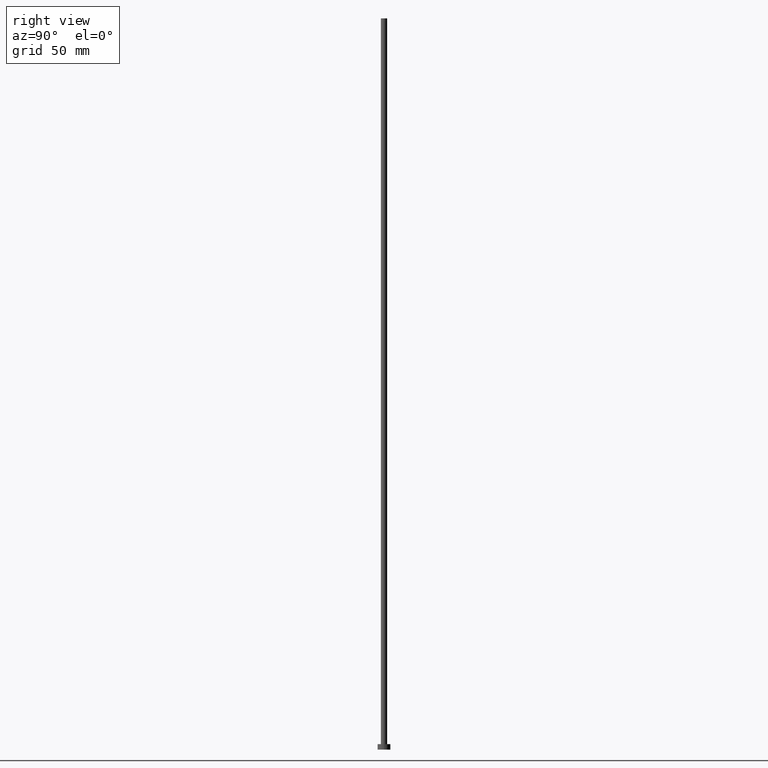
[diagram: clean part render]
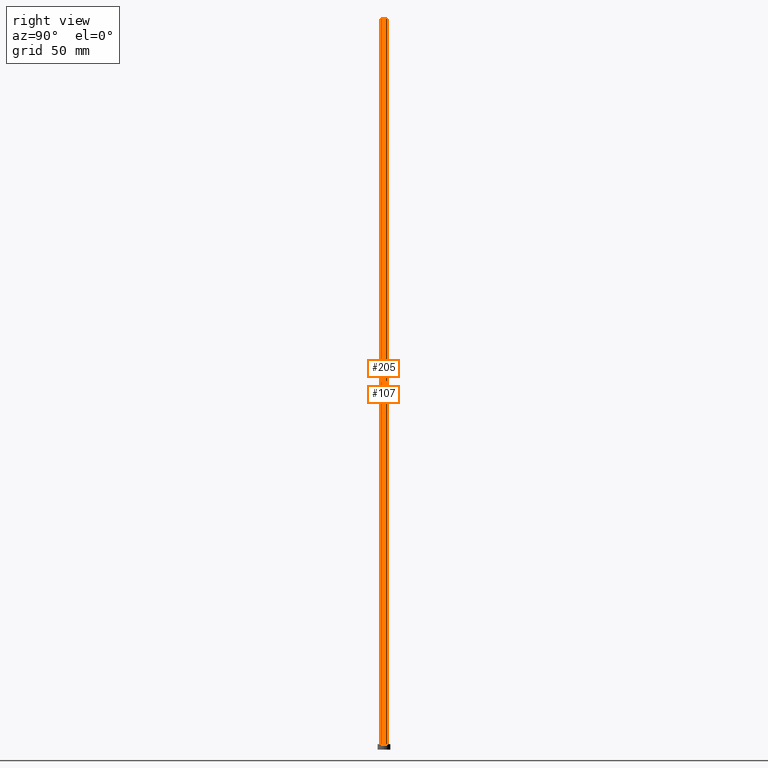
[diagram: same view with one multi-face feature highlighted, each face labeled with its STEP entity id]
A machine part, right view. The highlighted faces form ONE feature: a constant-radius fillet chain: 2 tangent blend faces with common blend radius 1.75 mm. The faces share edges in the B-rep.
Their STEP definitions:
[1] entity #107 (Cylinder):
#15 = VERTEX_POINT ( 'NONE', #118 ) ;
#18 = VECTOR ( 'NONE', #121, 1000.000000000000000 ) ;
#24 = LINE ( 'NONE', #80, #82 ) ;
#36 = AXIS2_PLACEMENT_3D ( 'NONE', #142, #45, #42 ) ;
#38 = VERTEX_POINT ( 'NONE', #104 ) ;
#41 = DIRECTION ( 'NONE',  ( -0.000000000000000000, -0.000000000000000000, -1.000000000000000000 ) ) ;
#42 = DIRECTION ( 'NONE',  ( 1.000000000000000000, 0.000000000000000000, 0.000000000000000000 ) ) ;
#45 = DIRECTION ( 'NONE',  ( 0.000000000000000000, 0.000000000000000000, 1.000000000000000000 ) ) ;
#51 = CIRCLE ( 'NONE', #96, 1.750000000000000000 ) ;
#74 = ORIENTED_EDGE ( 'NONE', *, *, #131, .T. ) ;
#80 = CARTESIAN_POINT ( 'NONE',  ( 1.750000000000000000, 2.143131898507868297E-16, 400.0000000000000000 ) ) ;
#82 = VECTOR ( 'NONE', #135, 1000.000000000000000 ) ;
#86 = DIRECTION ( 'NONE',  ( 0.000000000000000000, 0.000000000000000000, 1.000000000000000000 ) ) ;
#87 = CIRCLE ( 'NONE', #36, 1.750000000000000000 ) ;
#90 = EDGE_CURVE ( 'NONE', #38, #15, #238, .T. ) ;
#93 = EDGE_LOOP ( 'NONE', ( #191, #74, #148, #169 ) ) ;
#96 = AXIS2_PLACEMENT_3D ( 'NONE', #224, #86, #228 ) ;
#104 = CARTESIAN_POINT ( 'NONE',  ( -1.750000000000000000, 0.000000000000000000, 400.0000000000000000 ) ) ;
#107 = ADVANCED_FACE ( 'NONE', ( #223 ), #242, .T. ) ;
#118 = CARTESIAN_POINT ( 'NONE',  ( -1.750000000000000000, 0.000000000000000000, 3.000000000000000000 ) ) ;
#119 = DIRECTION ( 'NONE',  ( -1.000000000000000000, 0.000000000000000000, 0.000000000000000000 ) ) ;
#121 = DIRECTION ( 'NONE',  ( -0.000000000000000000, -0.000000000000000000, -1.000000000000000000 ) ) ;
#131 = EDGE_CURVE ( 'NONE', #211, #194, #24, .T. ) ;
#135 = DIRECTION ( 'NONE',  ( -0.000000000000000000, -0.000000000000000000, -1.000000000000000000 ) ) ;
#142 = CARTESIAN_POINT ( 'NONE',  ( 0.000000000000000000, 0.000000000000000000, 3.000000000000000000 ) ) ;
#143 = CARTESIAN_POINT ( 'NONE',  ( 1.750000000000000000, 2.143131898507868297E-16, 3.000000000000000000 ) ) ;
#148 = ORIENTED_EDGE ( 'NONE', *, *, #214, .T. ) ;
#169 = ORIENTED_EDGE ( 'NONE', *, *, #90, .F. ) ;
#179 = EDGE_CURVE ( 'NONE', #211, #38, #51, .T. ) ;
#180 = CARTESIAN_POINT ( 'NONE',  ( 0.000000000000000000, 0.000000000000000000, 400.0000000000000000 ) ) ;
#191 = ORIENTED_EDGE ( 'NONE', *, *, #179, .F. ) ;
#194 = VERTEX_POINT ( 'NONE', #143 ) ;
#197 = CARTESIAN_POINT ( 'NONE',  ( -1.750000000000000000, 0.000000000000000000, 400.0000000000000000 ) ) ;
#211 = VERTEX_POINT ( 'NONE', #247 ) ;
#214 = EDGE_CURVE ( 'NONE', #194, #15, #87, .T. ) ;
#223 = FACE_OUTER_BOUND ( 'NONE', #93, .T. ) ;
#224 = CARTESIAN_POINT ( 'NONE',  ( 0.000000000000000000, 0.000000000000000000, 400.0000000000000000 ) ) ;
#228 = DIRECTION ( 'NONE',  ( 1.000000000000000000, 0.000000000000000000, 0.000000000000000000 ) ) ;
#238 = LINE ( 'NONE', #197, #18 ) ;
#240 = AXIS2_PLACEMENT_3D ( 'NONE', #180, #41, #119 ) ;
#242 = CYLINDRICAL_SURFACE ( 'NONE', #240, 1.750000000000000000 ) ;
#247 = CARTESIAN_POINT ( 'NONE',  ( 1.750000000000000000, 2.143131898507868297E-16, 400.0000000000000000 ) ) ;
[2] entity #205 (Cylinder):
#7 = DIRECTION ( 'NONE',  ( 1.000000000000000000, 0.000000000000000000, 0.000000000000000000 ) ) ;
#15 = VERTEX_POINT ( 'NONE', #118 ) ;
#18 = VECTOR ( 'NONE', #121, 1000.000000000000000 ) ;
#24 = LINE ( 'NONE', #80, #82 ) ;
#25 = DIRECTION ( 'NONE',  ( -0.000000000000000000, -0.000000000000000000, -1.000000000000000000 ) ) ;
#28 = AXIS2_PLACEMENT_3D ( 'NONE', #178, #55, #61 ) ;
#30 = EDGE_CURVE ( 'NONE', #38, #211, #113, .T. ) ;
#38 = VERTEX_POINT ( 'NONE', #104 ) ;
#44 = EDGE_CURVE ( 'NONE', #15, #194, #164, .T. ) ;
#55 = DIRECTION ( 'NONE',  ( 0.000000000000000000, 0.000000000000000000, 1.000000000000000000 ) ) ;
#61 = DIRECTION ( 'NONE',  ( 1.000000000000000000, 0.000000000000000000, 0.000000000000000000 ) ) ;
#67 = FACE_OUTER_BOUND ( 'NONE', #139, .T. ) ;
#80 = CARTESIAN_POINT ( 'NONE',  ( 1.750000000000000000, 2.143131898507868297E-16, 400.0000000000000000 ) ) ;
#82 = VECTOR ( 'NONE', #135, 1000.000000000000000 ) ;
#88 = DIRECTION ( 'NONE',  ( -1.000000000000000000, 0.000000000000000000, 0.000000000000000000 ) ) ;
#90 = EDGE_CURVE ( 'NONE', #38, #15, #238, .T. ) ;
#91 = ORIENTED_EDGE ( 'NONE', *, *, #131, .F. ) ;
#104 = CARTESIAN_POINT ( 'NONE',  ( -1.750000000000000000, 0.000000000000000000, 400.0000000000000000 ) ) ;
#113 = CIRCLE ( 'NONE', #208, 1.750000000000000000 ) ;
#118 = CARTESIAN_POINT ( 'NONE',  ( -1.750000000000000000, 0.000000000000000000, 3.000000000000000000 ) ) ;
#121 = DIRECTION ( 'NONE',  ( -0.000000000000000000, -0.000000000000000000, -1.000000000000000000 ) ) ;
#131 = EDGE_CURVE ( 'NONE', #211, #194, #24, .T. ) ;
#133 = ORIENTED_EDGE ( 'NONE', *, *, #44, .T. ) ;
#135 = DIRECTION ( 'NONE',  ( -0.000000000000000000, -0.000000000000000000, -1.000000000000000000 ) ) ;
#139 = EDGE_LOOP ( 'NONE', ( #91, #239, #235, #133 ) ) ;
#141 = AXIS2_PLACEMENT_3D ( 'NONE', #243, #25, #88 ) ;
#143 = CARTESIAN_POINT ( 'NONE',  ( 1.750000000000000000, 2.143131898507868297E-16, 3.000000000000000000 ) ) ;
#164 = CIRCLE ( 'NONE', #28, 1.750000000000000000 ) ;
#178 = CARTESIAN_POINT ( 'NONE',  ( 0.000000000000000000, 0.000000000000000000, 3.000000000000000000 ) ) ;
#183 = DIRECTION ( 'NONE',  ( 0.000000000000000000, 0.000000000000000000, 1.000000000000000000 ) ) ;
#194 = VERTEX_POINT ( 'NONE', #143 ) ;
#197 = CARTESIAN_POINT ( 'NONE',  ( -1.750000000000000000, 0.000000000000000000, 400.0000000000000000 ) ) ;
#205 = ADVANCED_FACE ( 'NONE', ( #67 ), #226, .T. ) ;
#208 = AXIS2_PLACEMENT_3D ( 'NONE', #221, #183, #7 ) ;
#211 = VERTEX_POINT ( 'NONE', #247 ) ;
#221 = CARTESIAN_POINT ( 'NONE',  ( 0.000000000000000000, 0.000000000000000000, 400.0000000000000000 ) ) ;
#226 = CYLINDRICAL_SURFACE ( 'NONE', #141, 1.750000000000000000 ) ;
#235 = ORIENTED_EDGE ( 'NONE', *, *, #90, .T. ) ;
#238 = LINE ( 'NONE', #197, #18 ) ;
#239 = ORIENTED_EDGE ( 'NONE', *, *, #30, .F. ) ;
#243 = CARTESIAN_POINT ( 'NONE',  ( 0.000000000000000000, 0.000000000000000000, 400.0000000000000000 ) ) ;
#247 = CARTESIAN_POINT ( 'NONE',  ( 1.750000000000000000, 2.143131898507868297E-16, 400.0000000000000000 ) ) ;